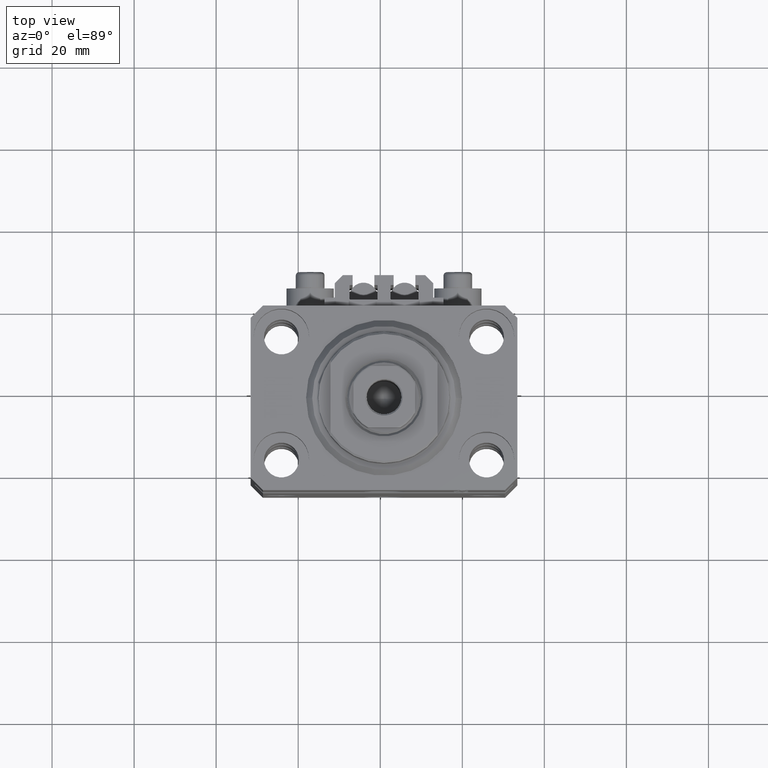
[diagram: clean part render]
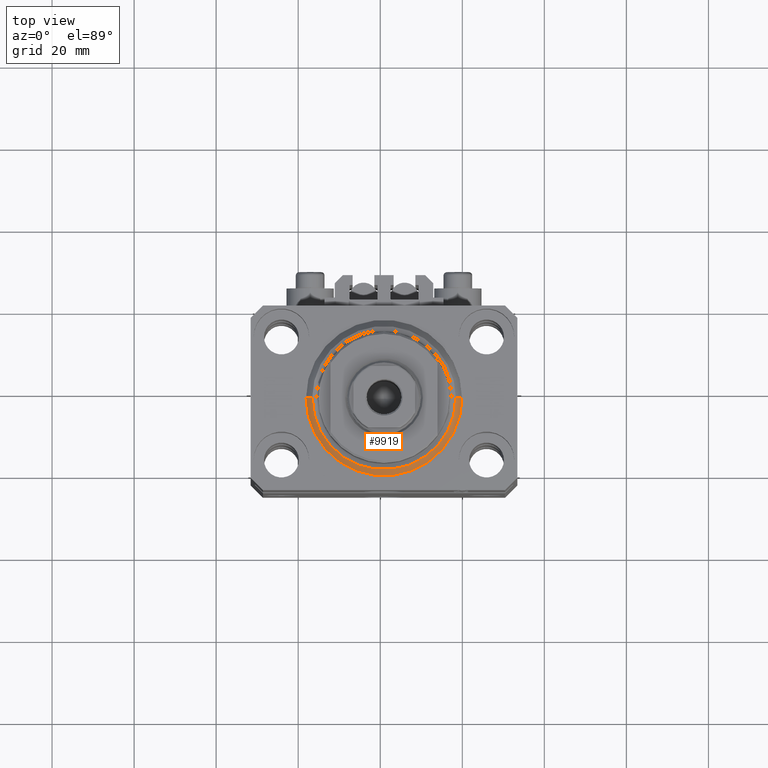
[diagram: same view with one face highlighted and labeled with its STEP entity id]
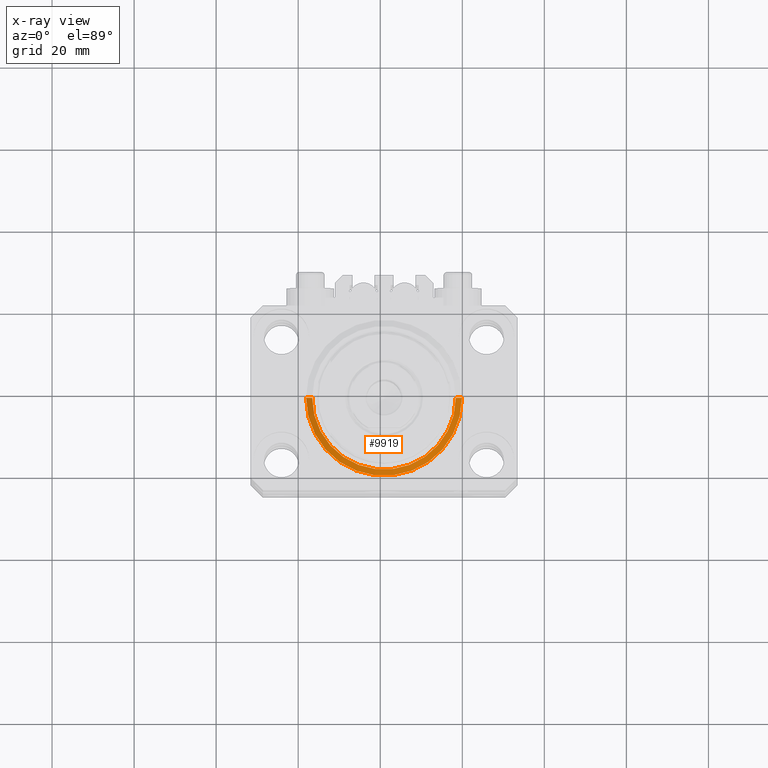
[diagram: x-ray of the same camera — body ghosted, the highlighted face saturated]
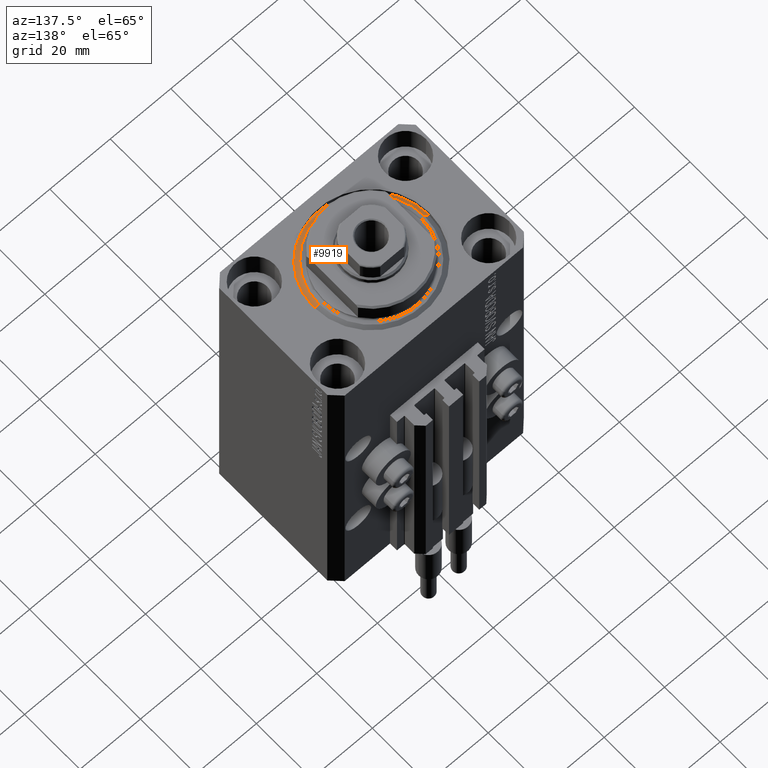
[diagram: same view with one face highlighted and labeled with its STEP entity id]
A machine part, top view. The second image highlights one B-rep face of the part: STEP entity #9919.
The next image is the same camera in x-ray: the body ghosted, the highlighted face saturated — about 0% of this face is hidden behind the body in this view.
A second angle (auxiliary view) of the same face is appended — the face is thin or edge-on in the first view.
In plain terms, the highlighted conical surface has half-angle 45 deg.
Its self-contained STEP definition (entity closure, byte-faithful):
#743 = CARTESIAN_POINT ( 'NONE',  ( 0.000000000000000000, 0.000000000000000000, 0.000000000000000000 ) ) ;
#1226 = DIRECTION ( 'NONE',  ( 1.000000000000000000, 0.000000000000000000, 0.000000000000000000 ) ) ;
#1307 = CARTESIAN_POINT ( 'NONE',  ( 19.00000000000000000, 2.326828918379970970E-15, 1.500000000000004885 ) ) ;
#1547 = CARTESIAN_POINT ( 'NONE',  ( 0.000000000000000000, 0.000000000000000000, 1.500000000000004885 ) ) ;
#2526 = VERTEX_POINT ( 'NONE', #44015 ) ;
#3297 = DIRECTION ( 'NONE',  ( -0.7071067811865483499, 8.659560562354943952E-17, 0.7071067811865467956 ) ) ;
#3610 = ORIENTED_EDGE ( 'NONE', *, *, #25709, .F. ) ;
#5090 = EDGE_CURVE ( 'NONE', #2526, #44433, #40328, .T. ) ;
#5336 = CARTESIAN_POINT ( 'NONE',  ( 19.00000000000000000, 0.000000000000000000, 1.500000000000004885 ) ) ;
#5648 = VERTEX_POINT ( 'NONE', #21505 ) ;
#6021 = DIRECTION ( 'NONE',  ( -0.000000000000000000, -0.000000000000000000, 1.000000000000000000 ) ) ;
#7174 = CARTESIAN_POINT ( 'NONE',  ( 17.49999999999999289, 0.000000000000000000, 0.000000000000000000 ) ) ;
#9919 = ADVANCED_FACE ( 'NONE', ( #43328 ), #20881, .T. ) ;
#18248 = CARTESIAN_POINT ( 'NONE',  ( -19.00000000000000000, 2.326828918379970970E-15, 1.500000000000004885 ) ) ;
#19607 = VECTOR ( 'NONE', #28124, 1000.000000000000000 ) ;
#20881 = CONICAL_SURFACE ( 'NONE', #44429, 19.00000000000000000, 0.7853981633974492782 ) ;
#21505 = CARTESIAN_POINT ( 'NONE',  ( -17.49999999999999289, 2.234980408443919215E-15, 0.000000000000000000 ) ) ;
#24623 = AXIS2_PLACEMENT_3D ( 'NONE', #1547, #30963, #45961 ) ;
#25113 = EDGE_CURVE ( 'NONE', #26963, #44433, #27393, .T. ) ;
#25709 = EDGE_CURVE ( 'NONE', #5648, #2526, #33458, .T. ) ;
#25850 = DIRECTION ( 'NONE',  ( 1.000000000000000000, 0.000000000000000000, 0.000000000000000000 ) ) ;
#26963 = VERTEX_POINT ( 'NONE', #7174 ) ;
#27189 = DIRECTION ( 'NONE',  ( -0.000000000000000000, -0.000000000000000000, -1.000000000000000000 ) ) ;
#27393 = LINE ( 'NONE', #5336, #19607 ) ;
#28124 = DIRECTION ( 'NONE',  ( 0.7071067811865483499, 0.000000000000000000, 0.7071067811865467956 ) ) ;
#29738 = EDGE_CURVE ( 'NONE', #26963, #5648, #32055, .T. ) ;
#30963 = DIRECTION ( 'NONE',  ( -0.000000000000000000, -0.000000000000000000, 1.000000000000000000 ) ) ;
#32055 = CIRCLE ( 'NONE', #45308, 17.49999999999999289 ) ;
#33458 = LINE ( 'NONE', #18248, #36136 ) ;
#33819 = ORIENTED_EDGE ( 'NONE', *, *, #29738, .F. ) ;
#36136 = VECTOR ( 'NONE', #3297, 1000.000000000000000 ) ;
#39644 = CARTESIAN_POINT ( 'NONE',  ( 0.000000000000000000, 0.000000000000000000, 1.500000000000004885 ) ) ;
#40328 = CIRCLE ( 'NONE', #24623, 19.00000000000000000 ) ;
#43328 = FACE_OUTER_BOUND ( 'NONE', #45821, .T. ) ;
#43377 = ORIENTED_EDGE ( 'NONE', *, *, #25113, .T. ) ;
#44015 = CARTESIAN_POINT ( 'NONE',  ( -19.00000000000000000, 0.000000000000000000, 1.500000000000004885 ) ) ;
#44163 = ORIENTED_EDGE ( 'NONE', *, *, #5090, .F. ) ;
#44429 = AXIS2_PLACEMENT_3D ( 'NONE', #39644, #6021, #25850 ) ;
#44433 = VERTEX_POINT ( 'NONE', #1307 ) ;
#45308 = AXIS2_PLACEMENT_3D ( 'NONE', #743, #27189, #1226 ) ;
#45821 = EDGE_LOOP ( 'NONE', ( #3610, #33819, #43377, #44163 ) ) ;
#45961 = DIRECTION ( 'NONE',  ( 1.000000000000000000, 0.000000000000000000, 0.000000000000000000 ) ) ;